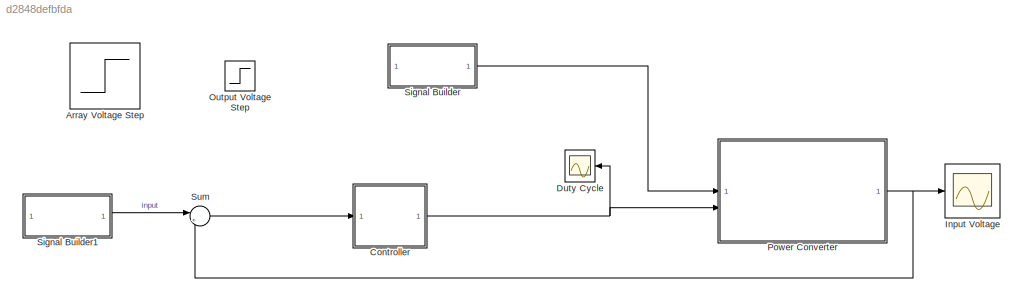
MODEL slx_d2848defbfda
KIND model
CONFIG AbsTol = auto
CONFIG EnableMultiTasking = off
CONFIG FixedStep = auto
CONFIG MaxStep = auto
CONFIG MinStep = auto
CONFIG RelTol = 1e-3
CONFIG SampleTimeConstraint = Unconstrained
CONFIG SolverName = VariableStepAuto
CONFIG StartTime = 0.0
CONFIG StopTime = 5
WORKSPACE source: mxarray member
WORKSPACE C = 0.0006
WORKSPACE L = 0.000418
WORKSPACE RL = 10
WORKSPACE Rc = 0.1
WORKSPACE Vo = 120
WORKSPACE kc = 737.104355192
WORKSPACE wp = 31102.8587028
WORKSPACE wz = 5077.14329177
BLOCK [Step] Array Voltage Step
  After = 40
  SampleTime = 0
  Time = 0.5
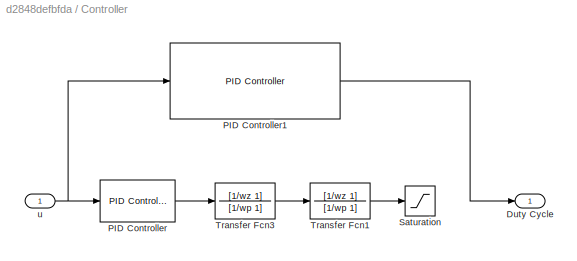
BLOCK [SubSystem] Controller
BLOCK [Outport] Controller/Duty Cycle
BLOCK [Reference] Controller/PID Controller  REF=slpidlib/PID Controller
  Commented = on
  LibrarySourceBlock = simulink/Continuous/PID Controller
  SourceBlock = slpidlib/PID Controller
  SourceType = PID 1dof
BLOCK [Reference] Controller/PID Controller1  REF=slpidlib/PID Controller
  LibrarySourceBlock = simulink/Continuous/PID Controller
  SourceBlock = slpidlib/PID Controller
  SourceType = PID 1dof
BLOCK [Saturate] Controller/Saturation
  Commented = on
  LowerLimit = 0
  UpperLimit = 0.9
BLOCK [TransferFcn] Controller/Transfer Fcn1
  Commented = on
  Denominator = [1/wp 1]
  Numerator = [1/wz 1]
BLOCK [TransferFcn] Controller/Transfer Fcn3
  Commented = on
  Denominator = [1/wp 1]
  Numerator = [1/wz 1]
BLOCK [Inport] Controller/u
BLOCK [Scope] Duty Cycle
  Floating = off
  NameLocation = top
  NumInputPorts = 1
  ScopeSpecificationString = Simulink.scopes.TimeScopeBlockCfg('CurrentConfiguration', extmgr.ConfigurationSet(extmgr.Configuration('Core','General UI',true),extmgr.Configuration('Core','Source UI',true),extmgr.Configuration('Sources','WiredSimulink',true,'DataLoggingVariableName','ScopeData1'),extmgr.Configuration('Visuals','Time Domain',true,'SerializedDisplays',{struct('MinYLimReal','-0.04909','MaxYLimReal','0.4418','YLabe...<+1438ch>
BLOCK [Scope] Input Voltage
  Floating = off
  NumInputPorts = 1
  ScopeSpecificationString = Simulink.scopes.TimeScopeBlockCfg('CurrentConfiguration', extmgr.ConfigurationSet(extmgr.Configuration('Core','General UI',true),extmgr.Configuration('Core','Source UI',true),extmgr.Configuration('Sources','WiredSimulink',true),extmgr.Configuration('Visuals','Time Domain',true,'SerializedDisplays',{struct('MinYLimReal','-1.77989','MaxYLimReal','40.50925','YLabelReal','','MinYLimMag','0.00000','Max...<+1412ch>
BLOCK [Step] Output Voltage Step
  After = 120
  Before = 150
  SampleTime = 0
  Time = 0.3
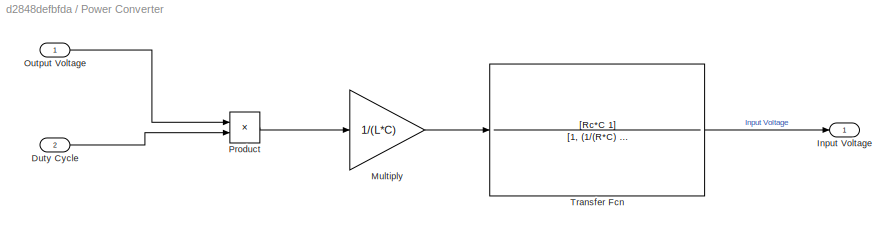
BLOCK [SubSystem] Power Converter
BLOCK [Inport] Power Converter/Duty Cycle
  Port = 2
BLOCK [Outport] Power Converter/Input Voltage
BLOCK [Gain] Power Converter/Multiply
  Gain = 1/(L*C)
BLOCK [Inport] Power Converter/Output Voltage
BLOCK [Product] Power Converter/Product
BLOCK [TransferFcn] Power Converter/Transfer Fcn
  Denominator = [1, (1/(R*C) + Rc/L), 1/(L*C)]
  Numerator = [Rc*C 1]
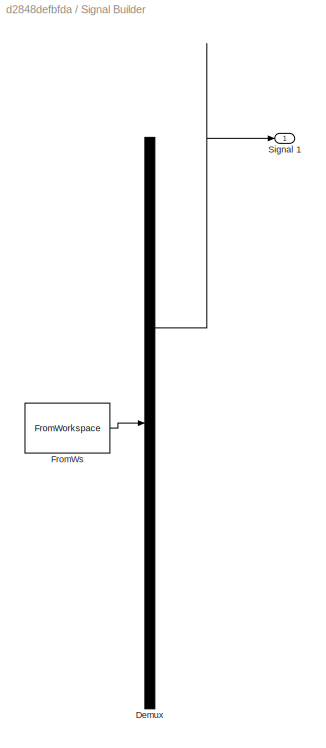
BLOCK [SubSystem] Signal Builder
  ClipboardFcn = sigbuilder_block('clipboard');
  CloseFcn = sigbuilder_block('close');
  ContinueFcn = sigbuilder_block('continue');
  CopyFcn = sigbuilder_block('copy');
  DeleteFcn = sigbuilder_block('delete');
  LoadFcn = sigbuilder_block('load');
  MaskHideContents = on
  ModelCloseFcn = sigbuilder_block('modelClose');
  NameChangeFcn = sigbuilder_block('namechange');
  OpenFcn = sigbuilder_block('open',[437.6 199.2 550.4 400 ]);
  PauseFcn = sigbuilder_block('pause');
  PreSaveFcn = sigbuilder_block('preSave');
  StartFcn = sigbuilder_block('start');
  StopFcn = sigbuilder_block('stop');
  Tag = STV Subsys
BLOCK [Demux] Signal Builder/Demux
  DisplayOption = none
  Outputs = 1
  Tag = STV Demux
BLOCK [FromWorkspace] Signal Builder/FromWs
  Tag = STV FromWs
  VariableName = tuvar
BLOCK [Outport] Signal Builder/Signal 1
  Tag = STV Outport
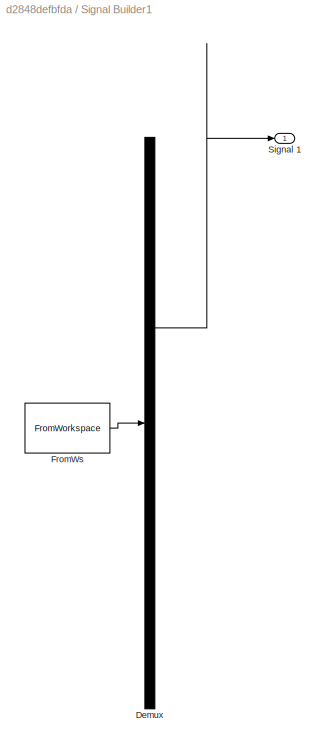
BLOCK [SubSystem] Signal Builder1
  ClipboardFcn = sigbuilder_block('clipboard');
  CloseFcn = sigbuilder_block('close');
  ContinueFcn = sigbuilder_block('continue');
  CopyFcn = sigbuilder_block('copy');
  DeleteFcn = sigbuilder_block('delete');
  LoadFcn = sigbuilder_block('load');
  MaskHideContents = on
  ModelCloseFcn = sigbuilder_block('modelClose');
  NameChangeFcn = sigbuilder_block('namechange');
  OpenFcn = sigbuilder_block('open',[437.6 199.2 550.4 400 ]);
  PauseFcn = sigbuilder_block('pause');
  PreSaveFcn = sigbuilder_block('preSave');
  StartFcn = sigbuilder_block('start');
  StopFcn = sigbuilder_block('stop');
  Tag = STV Subsys
BLOCK [Demux] Signal Builder1/Demux
  DisplayOption = none
  Outputs = 1
  Tag = STV Demux
BLOCK [FromWorkspace] Signal Builder1/FromWs
  Tag = STV FromWs
  VariableName = tuvar
BLOCK [Outport] Signal Builder1/Signal 1
  Tag = STV Outport
BLOCK [Sum] Sum
  Inputs = |+-
LINE Controller/PID Controller1:1 -> Controller/Duty Cycle:1
LINE Controller/PID Controller:1 -> Controller/Transfer Fcn3:1
LINE Controller/Transfer Fcn1:1 -> Controller/Saturation:1
LINE Controller/Transfer Fcn3:1 -> Controller/Transfer Fcn1:1
NET Controller/u:1 -> Controller/PID Controller1:1, Controller/PID Controller:1
NET Controller:1 -> Duty Cycle:1, Power Converter:2
LINE Power Converter/Duty Cycle:1 -> Power Converter/Product:2
LINE Power Converter/Multiply:1 -> Power Converter/Transfer Fcn:1
LINE Power Converter/Output Voltage:1 -> Power Converter/Product:1
LINE Power Converter/Product:1 -> Power Converter/Multiply:1
LINE Power Converter/Transfer Fcn:1 -> Power Converter/Input Voltage:1
NET Power Converter:1 -> Input Voltage:1, Sum:2
LINE Signal Builder1:1 -> Sum:1
LINE Signal Builder:1 -> Power Converter:1
LINE Sum:1 -> Controller:1
note: NET lines group one-source signal fan-out (src -> all destinations, sorted); 1:1 wires keep LINE
